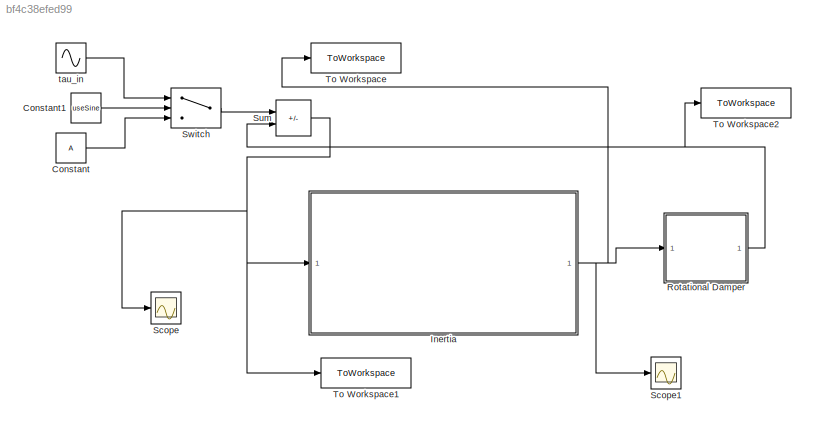
MODEL slx_bf4c38efed99
KIND model
CONFIG AbsTol = auto
CONFIG EnableMultiTasking = off
CONFIG FixedStep = 0.01
CONFIG MaxStep = auto
CONFIG MinStep = auto
CONFIG RelTol = 1e-3
CONFIG SampleTimeConstraint = Unconstrained
CONFIG SolverName = ode1
CONFIG StartTime = 0.0
CONFIG StopTime = 25
BLOCK [Constant] Constant
  Value = A
BLOCK [Constant] Constant1
  Value = useSine
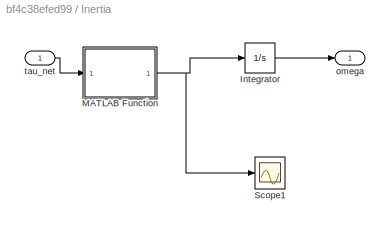
BLOCK [SubSystem] Inertia
BLOCK [Integrator] Inertia/Integrator
  InitialCondition = omega0
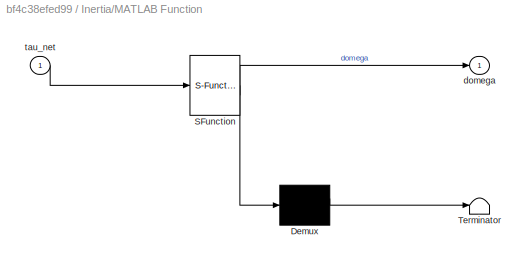
BLOCK [SubSystem] Inertia/MATLAB Function
  ErrorFcn = Stateflow.Translate.translate
  PermitHierarchicalResolution = ExplicitOnly
  SFBlockType = MATLAB Function
  TreatAsAtomicUnit = on
BLOCK [Demux] Inertia/MATLAB Function/ Demux 
  Outputs = 1
BLOCK [S-Function] Inertia/MATLAB Function/ SFunction 
  EnableBusSupport = off
  FunctionName = sf_sfun
  Parameters = J
  PortCounts = [1 2]
  SFcnIsStateOwnerBlock = off
  SFunctionDeploymentMode = off
  Tag = Stateflow S-Function 2
BLOCK [Terminator] Inertia/MATLAB Function/ Terminator 
BLOCK [Outport] Inertia/MATLAB Function/domega
BLOCK [Inport] Inertia/MATLAB Function/tau_net
BLOCK [Scope] Inertia/Scope1
  ActiveDisplayYMaximum = 0.032665919799133816
  ActiveDisplayYMinimum = -1.1147406577554593
  DataLoggingVariableName = ScopeData1
  Floating = off
  GraphicalSettings = {"Style":{"BackgroundColor":[0.12941176470588237,0.12941176470588237,0.12941176470588237],"AxesColor":[0.07058823529411765,0.07058823529411765,0.07058823529411765],"LabelsColor":[0.8509803921568627,0.8509803921568627,0.8509803921568627],"PreserveColors":false,"Visible":[true],"LineStyle":["-"],"LineWidth":[1.5],"BarWidth":[0.9],"LineColor":["auto"],"LineFaceAlpha":[1],"LineEdgeAlpha":[1],"Marker":...<+2014ch>
  MultipleDisplayCache = [{"MaxYLimMag":1.1147406577554593,"MaxYLimReal":0.032665919799133816,"MinYLimMag":0,"MinYLimReal":-1.1147406577554593,"PlotAsMagnitudePhase":false,"ShowGrid":true,"ShowLegend":false,"Title":"%<SignalLabel>","YLabel":""}]
  NumInputPorts = 1
  ScopeFrameLocation = window
  WasSavedAsWebScope = on
  WindowPosition = [1000.000000,510.000000,560.000000,420.000000,]
BLOCK [Outport] Inertia/omega
BLOCK [Inport] Inertia/tau_net
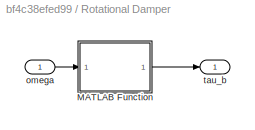
BLOCK [SubSystem] Rotational Damper
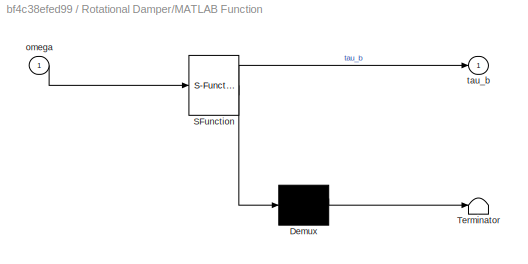
BLOCK [SubSystem] Rotational Damper/MATLAB Function
  ErrorFcn = Stateflow.Translate.translate
  PermitHierarchicalResolution = ExplicitOnly
  SFBlockType = MATLAB Function
  TreatAsAtomicUnit = on
BLOCK [Demux] Rotational Damper/MATLAB Function/ Demux 
  Outputs = 1
BLOCK [S-Function] Rotational Damper/MATLAB Function/ SFunction 
  EnableBusSupport = off
  FunctionName = sf_sfun
  Parameters = b
  PortCounts = [1 2]
  SFcnIsStateOwnerBlock = off
  SFunctionDeploymentMode = off
  Tag = Stateflow S-Function 1
BLOCK [Terminator] Rotational Damper/MATLAB Function/ Terminator 
BLOCK [Inport] Rotational Damper/MATLAB Function/omega
BLOCK [Outport] Rotational Damper/MATLAB Function/tau_b
BLOCK [Inport] Rotational Damper/omega
BLOCK [Outport] Rotational Damper/tau_b
BLOCK [Scope] Scope
  ActiveDisplayYMaximum = 2.3125120453084478E+299
  ActiveDisplayYMinimum = -2.1217981751184507E+299
  Floating = off
  GraphicalSettings = {"AxesScalingProperties":{"AlignXAxis":"Center","AlignYAxis":"Center","AutoScaleXAxisLimits":false,"AxesScaling":"Manual","AxesScalingNumUpdates":10,"ExpandOnly":true,"ScaleAxesLimitsAtStop":false,"XAxisDataRange":100,"YAxisDataRange":80},"DisplayProperties":{"ColorOrder":["auto","auto","auto","auto","auto","auto","auto","auto","auto","auto","auto","auto","auto","auto","auto","auto","auto","auto",...<+2028ch>
  MultipleDisplayCache = [{"MaxYLimMag":4.3941191536308407E+302,"MaxYLimReal":2.3125120453084478E+299,"MinYLimMag":0,"MinYLimReal":-2.1217981751184507E+299,"PlotAsMagnitudePhase":false,"ShowGrid":true,"ShowLegend":false,"Title":"%<SignalLabel>","YLabel":""}]
  NumInputPorts = 1
  ScopeFrameLocation = window
  WasSavedAsWebScope = on
  WindowPosition = [1000.000000,510.000000,560.000000,420.000000,]
BLOCK [Scope] Scope1
  ActiveDisplayYMaximum = 11.498860182352466
  ActiveDisplayYMinimum = -1.6261398174868091
  DataLoggingVariableName = ScopeData2
  Floating = off
  GraphicalSettings = {"AxesScalingProperties":{"AlignXAxis":"Center","AlignYAxis":"Center","AutoScaleXAxisLimits":false,"AxesScaling":"Manual","AxesScalingNumUpdates":10,"ExpandOnly":true,"ScaleAxesLimitsAtStop":false,"XAxisDataRange":100,"YAxisDataRange":80},"DisplayProperties":{"ColorOrder":["auto","auto","auto","auto","auto","auto","auto","auto","auto","auto","auto","auto","auto","auto","auto","auto","auto","auto",...<+2036ch>
  MultipleDisplayCache = [{"MaxYLimMag":11.249999999984693,"MaxYLimReal":11.498860182352466,"MinYLimMag":0,"MinYLimReal":-1.6261398174868091,"PlotAsMagnitudePhase":false,"ShowGrid":true,"ShowLegend":false,"Title":"%<SignalLabel>","YLabel":""}]
  NumInputPorts = 1
  ScopeFrameLocation = window
  WasSavedAsWebScope = on
  WindowPosition = [1000.000000,510.000000,560.000000,420.000000,]
BLOCK [Sum] Sum
  IconShape = rectangular
  Inputs = +-
BLOCK [Switch] Switch
  Criteria = u2 > Threshold
  InputSameDT = off
  SaturateOnIntegerOverflow = off
BLOCK [ToWorkspace] To Workspace
  FixptAsFi = on
  MaxDataPoints = inf
  SampleTime = -1
  SaveFormat = Timeseries
  VariableName = omega_out
BLOCK [ToWorkspace] To Workspace1
  FixptAsFi = on
  MaxDataPoints = inf
  SampleTime = -1
  SaveFormat = Timeseries
  VariableName = tau_net_out
BLOCK [ToWorkspace] To Workspace2
  FixptAsFi = on
  MaxDataPoints = inf
  SampleTime = -1
  SaveFormat = Timeseries
  VariableName = tau_b_out
BLOCK [Sin] tau_in
  Amplitude = A
  Frequency = w
  SampleTime = 0
LINE Constant1:1 -> Switch:2
LINE Constant:1 -> Switch:3
LINE Inertia/Integrator:1 -> Inertia/omega:1
NET Inertia/MATLAB Function:1 -> Inertia/Integrator:1, Inertia/Scope1:1
LINE Inertia/tau_net:1 -> Inertia/MATLAB Function:1
NET Inertia:1 -> Rotational Damper:1, Scope1:1, To Workspace:1
LINE Rotational Damper/MATLAB Function:1 -> Rotational Damper/tau_b:1
LINE Rotational Damper/omega:1 -> Rotational Damper/MATLAB Function:1
NET Rotational Damper:1 -> Sum:2, To Workspace2:1
NET Sum:1 -> Inertia:1, Scope:1, To Workspace1:1
LINE Switch:1 -> Sum:1
LINE tau_in:1 -> Switch:1
note: NET lines group one-source signal fan-out (src -> all destinations, sorted); 1:1 wires keep LINE
CHART Inertia/MATLAB Function states=1 transitions=1
  STATE_LABEL 'eML_blk_kernel()'
  STATE_LABEL 'SCRIPT:\nfunction domega = inertia(tau_net, J)\n\ndomega = tau_net / J;\n\n'
CHART Rotational Damper/MATLAB Function states=1 transitions=1
  STATE_LABEL 'eML_blk_kernel()'
  STATE_LABEL 'SCRIPT:\nfunction tau_b = damper(omega, b)\n\ntau_b = b * omega;\n'
CHART  states=0 transitions=0
CHART  states=0 transitions=0
